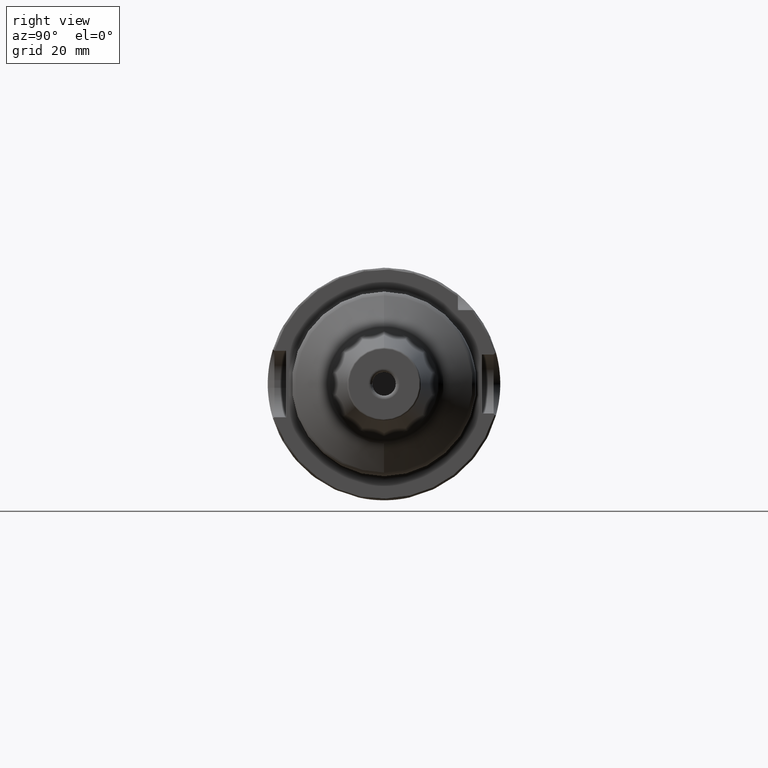
[diagram: clean part render]
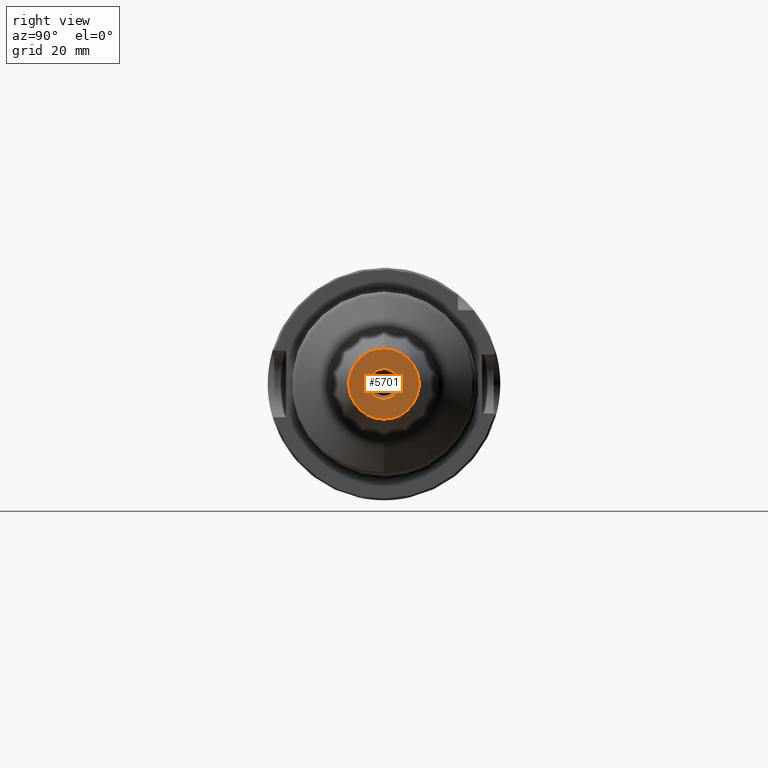
[diagram: same view with one face highlighted and labeled with its STEP entity id]
A machine part, right view. The second image highlights one B-rep face of the part: STEP entity #5701.
In plain terms, the highlighted planar face has unit normal (1, 0, 0).
Its self-contained STEP definition (entity closure, byte-faithful):
#2402=CARTESIAN_POINT('',(1.45E2,0.E0,0.E0));
#2403=DIRECTION('',(-1.E0,0.E0,0.E0));
#2404=DIRECTION('',(0.E0,-1.E0,0.E0));
#2405=AXIS2_PLACEMENT_3D('',#2402,#2403,#2404);
#2407=CARTESIAN_POINT('',(1.45E2,0.E0,0.E0));
#2408=DIRECTION('',(-1.E0,0.E0,0.E0));
#2409=DIRECTION('',(0.E0,1.E0,0.E0));
#2410=AXIS2_PLACEMENT_3D('',#2407,#2408,#2409);
#2412=CARTESIAN_POINT('',(1.45E2,0.E0,0.E0));
#2413=DIRECTION('',(-1.E0,0.E0,0.E0));
#2414=DIRECTION('',(0.E0,0.E0,-1.E0));
#2415=AXIS2_PLACEMENT_3D('',#2412,#2413,#2414);
#2417=CARTESIAN_POINT('',(1.45E2,0.E0,0.E0));
#2418=DIRECTION('',(-1.E0,0.E0,0.E0));
#2419=DIRECTION('',(0.E0,0.E0,1.E0));
#2420=AXIS2_PLACEMENT_3D('',#2417,#2418,#2419);
#2888=CARTESIAN_POINT('',(1.45E2,-4.175E0,0.E0));
#2889=CARTESIAN_POINT('',(1.45E2,4.175E0,0.E0));
#2890=VERTEX_POINT('',#2888);
#2891=VERTEX_POINT('',#2889);
#2954=CARTESIAN_POINT('',(1.45E2,0.E0,-9.525517716643E0));
#2955=CARTESIAN_POINT('',(1.45E2,-1.027171520507E-14,9.525517716643E0));
#2956=VERTEX_POINT('',#2954);
#2957=VERTEX_POINT('',#2955);
#5686=CARTESIAN_POINT('',(1.45E2,0.E0,0.E0));
#5687=DIRECTION('',(1.E0,0.E0,0.E0));
#5688=DIRECTION('',(0.E0,0.E0,1.E0));
#5689=AXIS2_PLACEMENT_3D('',#5686,#5687,#5688);
#5690=PLANE('',#5689);
#5691=ORIENTED_EDGE('',*,*,#5668,.T.);
#5692=ORIENTED_EDGE('',*,*,#5653,.T.);
#5693=EDGE_LOOP('',(#5691,#5692));
#5694=FACE_OUTER_BOUND('',#5693,.F.);
#5696=ORIENTED_EDGE('',*,*,#5695,.F.);
#5698=ORIENTED_EDGE('',*,*,#5697,.F.);
#5699=EDGE_LOOP('',(#5696,#5698));
#5700=FACE_BOUND('',#5699,.F.);
#5701=ADVANCED_FACE('',(#5694,#5700),#5690,.T.);
#2406=CIRCLE('',#2405,4.175E0);
#2411=CIRCLE('',#2410,4.175E0);
#2416=CIRCLE('',#2415,9.525517716643E0);
#2421=CIRCLE('',#2420,9.525517716643E0);
#5653=EDGE_CURVE('',#2957,#2956,#2421,.T.);
#5668=EDGE_CURVE('',#2956,#2957,#2416,.T.);
#5695=EDGE_CURVE('',#2890,#2891,#2406,.T.);
#5697=EDGE_CURVE('',#2891,#2890,#2411,.T.);